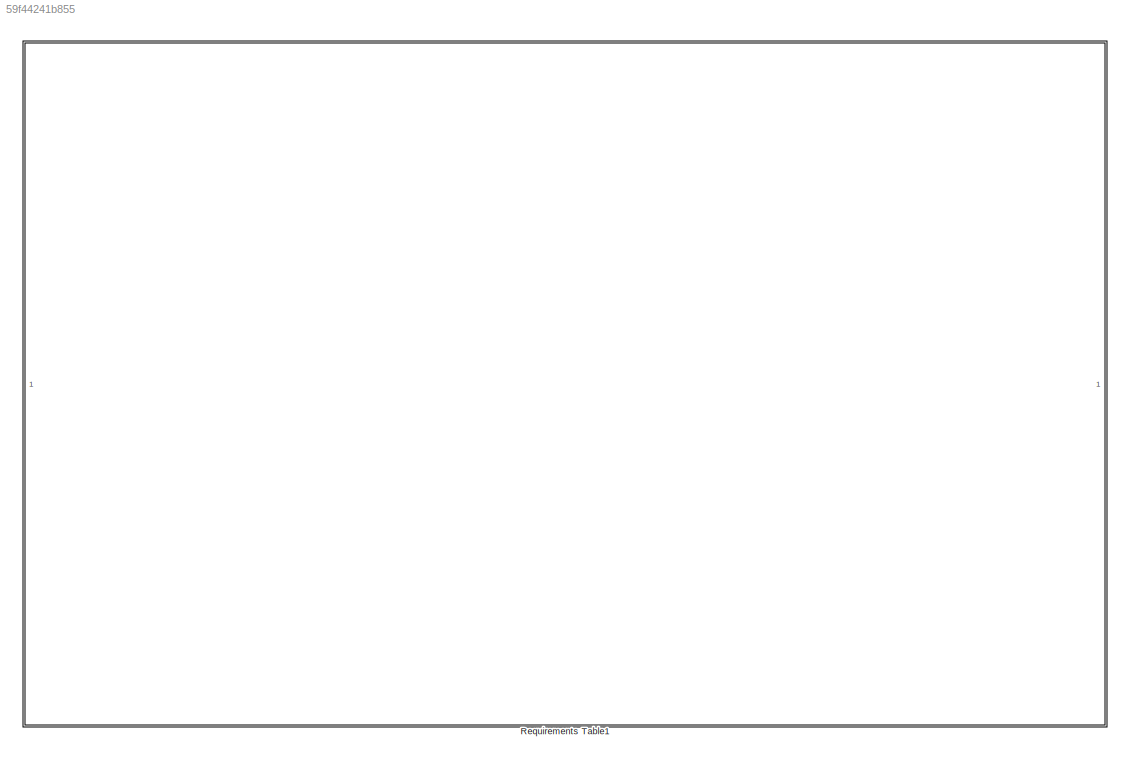
MODEL slx_59f44241b855
KIND model
CONFIG AbsTol = auto
CONFIG EnableMultiTasking = off
CONFIG FixedStep = auto
CONFIG MaxStep = auto
CONFIG MinStep = auto
CONFIG RelTol = 1e-3
CONFIG SampleTimeConstraint = Unconstrained
CONFIG SolverName = VariableStepAuto
CONFIG StartTime = 0.0
CONFIG StopTime = 10.0
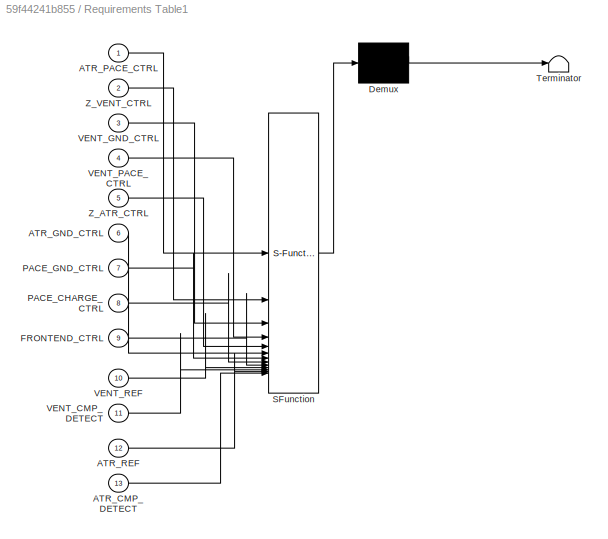
BLOCK [SubSystem] Requirements Table1
  ErrorFcn = Stateflow.Translate.translate
  PermitHierarchicalResolution = ExplicitOnly
  SFBlockType = Requirements Table
  TreatAsAtomicUnit = on
BLOCK [Demux] Requirements Table1/ Demux 
  Outputs = 1
BLOCK [S-Function] Requirements Table1/ SFunction 
  EnableBusSupport = on
  FunctionName = sf_sfun
  PortCounts = [13 1]
  SFcnIsStateOwnerBlock = off
  SFunctionDeploymentMode = off
  Tag = Stateflow S-Function 2
BLOCK [Terminator] Requirements Table1/ Terminator 
BLOCK [Inport] Requirements Table1/ATR_CMP_DETECT
  Port = 13
BLOCK [Inport] Requirements Table1/ATR_GND_CTRL
  Port = 6
BLOCK [Inport] Requirements Table1/ATR_PACE_CTRL
BLOCK [Inport] Requirements Table1/ATR_REF
  Port = 12
BLOCK [Inport] Requirements Table1/FRONTEND_CTRL
  Port = 9
BLOCK [Inport] Requirements Table1/PACE_CHARGE_CTRL
  Port = 8
BLOCK [Inport] Requirements Table1/PACE_GND_CTRL
  Port = 7
BLOCK [Inport] Requirements Table1/VENT_CMP_DETECT
  Port = 11
BLOCK [Inport] Requirements Table1/VENT_GND_CTRL
  Port = 3
BLOCK [Inport] Requirements Table1/VENT_PACE_CTRL
  Port = 4
BLOCK [Inport] Requirements Table1/VENT_REF
  Port = 10
BLOCK [Inport] Requirements Table1/Z_ATR_CTRL
  Port = 5
BLOCK [Inport] Requirements Table1/Z_VENT_CTRL
  Port = 2
CHART Requirements Table1 states=0 transitions=258
CHART  states=0 transitions=0
